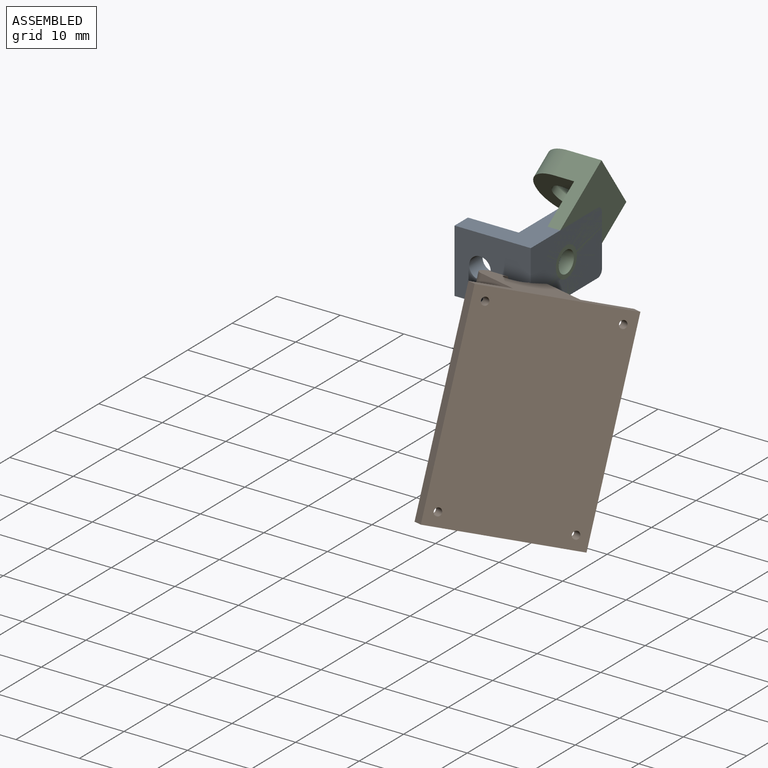
[diagram: assembled view]
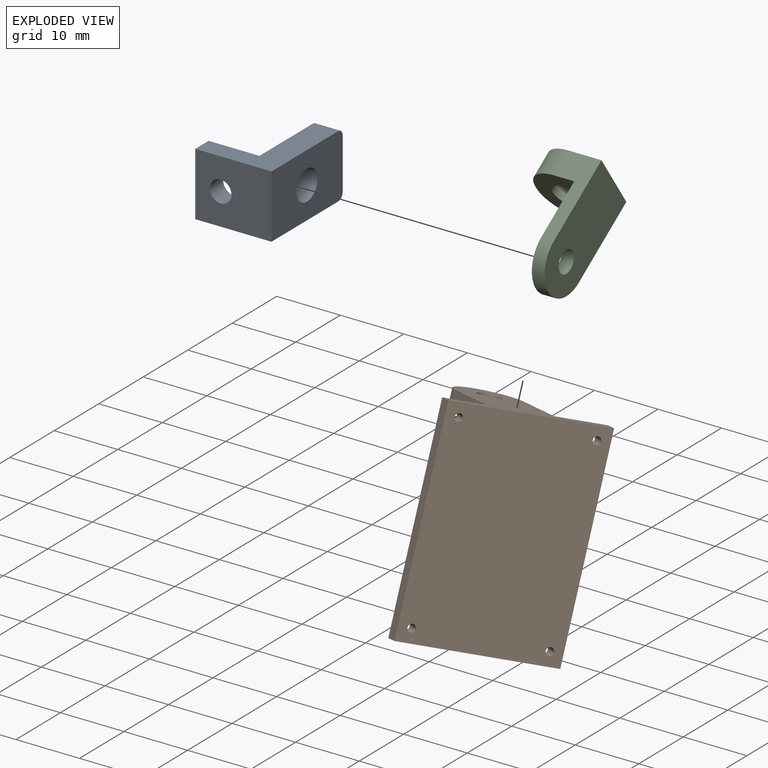
[diagram: exploded view]
GUIDED TOUR — FREECAD ASSEMBLY "CameraMount"

This assembly has 3 components, labeled P0..P2 below (a component is one placed body or linked part; the same part can appear more than once), held together by 2 modeled joints. A joint is a constraint between two components; its type names the relative motion it leaves free:
  REVOLUTE — leaves rotation about the listed axis free (a hinge).
Axis/direction vectors are unit vectors and 'through' points are millimeter coordinates, both in the assembly's world frame.

MATES
  1. REVOLUTE [Revolute] "Joint": P2 <-> P0, axis (-1.000, 0.000, 0.000) through (2.00, 8.00, 5.00) mm
  2. REVOLUTE [Revolute] "Joint001": P2 <-> P1, axis (0.000, 0.378, 0.926) through (0.00, -1.30, 3.40) mm

ASSEMBLY ORDER
  1. P2 — the base component [order verified]
  2. P1 [order verified]
  3. P0 [order verified]
(P0 verified with a relaxed clearance tolerance: the source model stores slight part interference there.)
Order-tag legend:
  [order verified] — this step's position reverses a verified removal order: the component was checked to insert without passing through the ones already placed.

Of the 3 components, 3 carry a construction recipe — the FreeCAD feature program (sketches with constraints, then the solid features that consume them) that regenerates the part from scratch, quoted from this document or from the linked companion document it references; the rest are supplied as boundary geometry only. The tour below walks the components in assembly order: each is shown spotlighted twice — in the assembled view, then in the exploded view, where a leader line traces a displaced component back to its assembled socket (components that stay in place when exploded have no leader line; saturated green if recipe-attached, orange if geometry-only; every other component desaturated gray) — followed by its recipe or geometry summary and the mates that hold it.
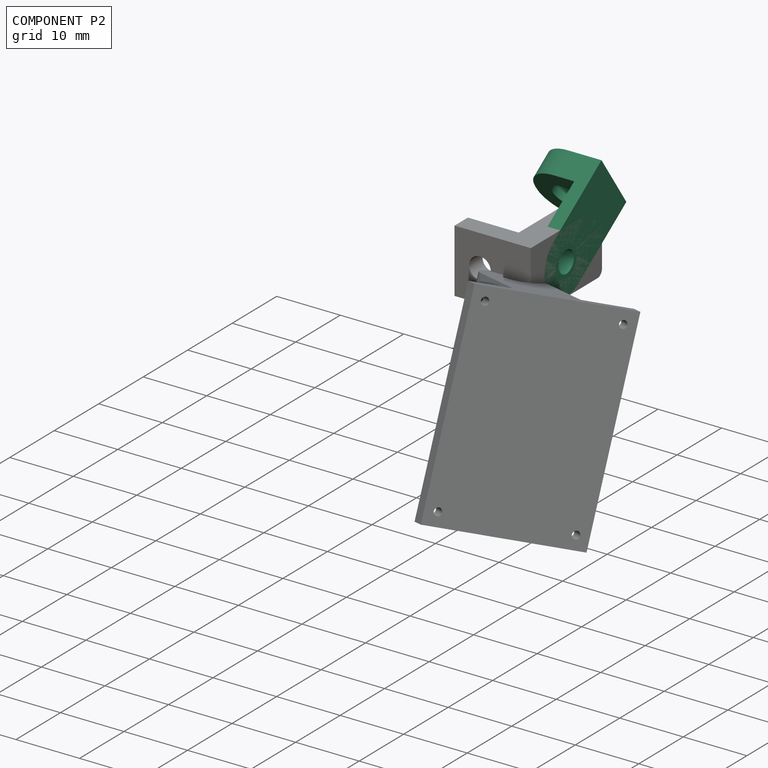
[diagram: component P2 — assembled]
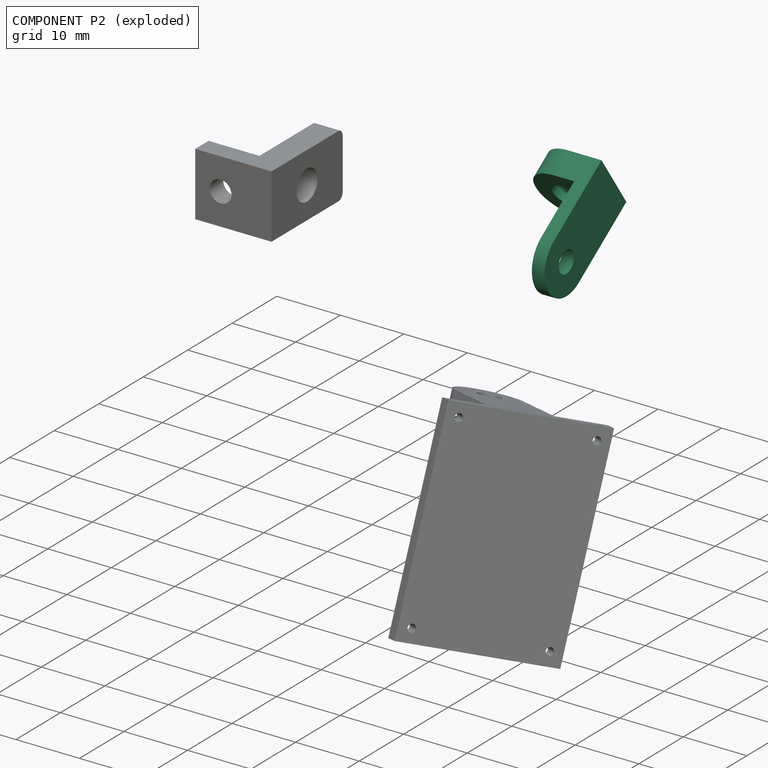
[diagram: component P2 — exploded]
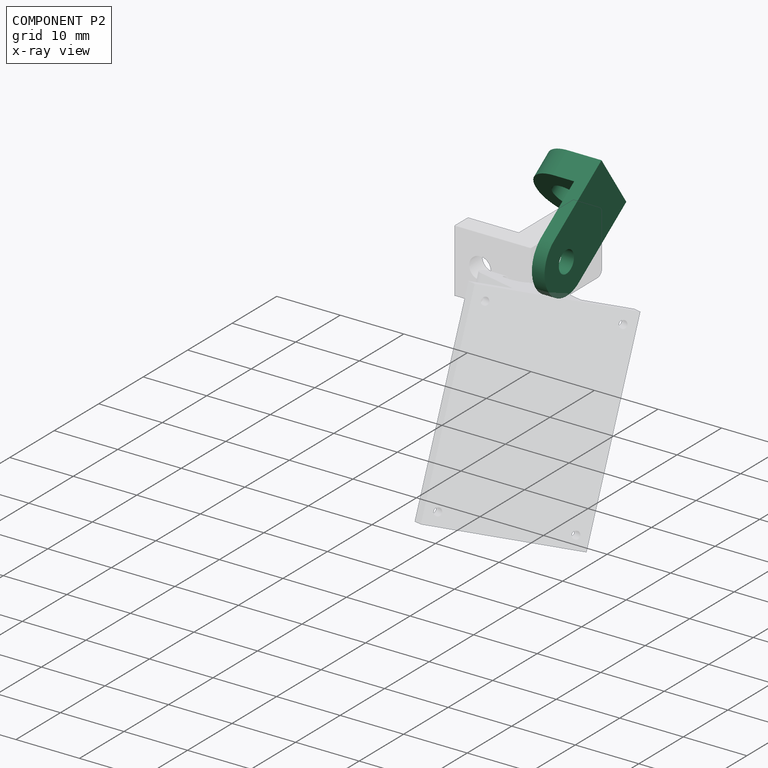
[diagram: component P2 — x-ray view]
COMPONENT P2 — recipe-attached ("Body006", modeled in this document).
Held by: REVOLUTE mate "Joint" to P0; REVOLUTE mate "Joint001" to P1.
Construction recipe (the document's own serialized feature program — sketch geometry with constraints, then the solid features built on it; lengths are millimeters unless a unit is written):

FEATURE [PartDesign::ShapeBinder] ShapeBinder
  Support = -> [Pocket]
  TraceSupport = false
FEATURE [PartDesign::Plane] DatumPlane
  AttachmentSupport = -> [ShapeBinder]
  Length = 60
  MapMode = 5
  Placement = pos=(2,0,0) rot=(0.57735,0.57735,0.57735;2.0944rad)
  ResizeMode = 0
  Width = 60
FEATURE [Sketcher::SketchObject] Sketch004
  ArcFitTolerance = 1e-06
  AttachmentSupport = -> [DatumPlane]
  ExternalGeometry = -> [ShapeBinder]
  FullyConstrained = true
  MakeInternals = false
  MapMode = 5
  Placement = pos=(2,0,0) rot=(0.57735,0.57735,0.57735;2.0944rad)
  sketch-geometry (7):
    g0: ArcOfCircle CenterX=-7 CenterY=-5 CenterZ=0 NormalX=0 NormalY=0 NormalZ=1 AngleXU=0 Radius=4.9 StartAngle=4.71239 EndAngle=7.85398
    g1: Circle CenterX=-7 CenterY=-5 CenterZ=0 NormalX=0 NormalY=0 NormalZ=1 AngleXU=0 Radius=1.7
    g2: GeomPoint X=-7 Y=-0.1 Z=0
    g3: GeomPoint X=-7 Y=-9.9 Z=0
    g4: LineSegment StartX=-7 StartY=-0.1 StartZ=0 EndX=-20 EndY=-0.1 EndZ=0
    g5: LineSegment StartX=-20 StartY=-0.1 StartZ=0 EndX=-20 EndY=-9.9 EndZ=0
    g6: LineSegment StartX=-20 StartY=-9.9 StartZ=0 EndX=-7 EndY=-9.9 EndZ=0
  constraints (15):
    c: Coincident(g0,g-3)
    c: Diameter(g0) = 9.8
    c: Coincident(g1,g0)
    c: Diameter(g1) = 3.4
    c: Vertical(g3,g0)
    c: Vertical(g2,g0)
    c: Coincident(g4,g2)
    c: Horizontal(g4)
    c: Coincident(g5,g4)
    c: Vertical(g5)
    c: Coincident(g6,g5)
    c: Coincident(g6,g3)
    c: Coincident(g0,g4)
    c: Tangent(g0,g6) = -1.5708
    c: DistanceX(g6,g6) = 13
FEATURE [PartDesign::Pad] Pad002
  Direction = (1,0,0)
  Length = 2
  Length2 = 10
  Placement = pos=(2,0,0) rot=(0.57735,0.57735,0.57735;2.0944rad)
  Profile = -> Sketch004
  ReferenceAxis = -> Sketch004 [N_Axis]
  Refine = true
  Suppressed = false
  Type = 0
FEATURE [Sketcher::SketchObject] Sketch005
  ArcFitTolerance = 1e-06
  AttachmentSupport = -> [Pad002]
  ExternalGeometry = -> [Pad002]
  FullyConstrained = true
  MakeInternals = false
  MapMode = 5
  Placement = pos=(2,0,-9.9) rot=(0.707107,0.707107,0;3.14159rad)
  sketch-geometry (4):
    g0: LineSegment StartX=-20 StartY=2 StartZ=0 EndX=-16 EndY=2 EndZ=0
    g1: LineSegment StartX=-16 StartY=2 StartZ=0 EndX=-16 EndY=10 EndZ=0
    g2: LineSegment StartX=-16 StartY=10 StartZ=0 EndX=-20 EndY=10 EndZ=0
    g3: LineSegment StartX=-20 StartY=10 StartZ=0 EndX=-20 EndY=2 EndZ=0
  constraints (11):
    c: Coincident(g0,g1)
    c: Coincident(g1,g2)
    c: Coincident(g2,g3)
    c: Coincident(g3,g0)
    c: Horizontal(g0)
    c: Horizontal(g2)
    c: Vertical(g1)
    c: Vertical(g3)
    c: Distance(g1,g3) = 4
    c: Distance(g0,g2) = 8
    c: Coincident(g0,g-3)
FEATURE [PartDesign::Pad] Pad003
  BaseFeature = -> Pad002
  Direction = (0,0,-1)
  Length = 9.8
  Length2 = 10
  Placement = pos=(2,0,0) rot=(0.57735,0.57735,0.57735;2.0944rad)
  Profile = -> Sketch005
  ReferenceAxis = -> Sketch005 [N_Axis]
  Refine = true
  Reversed = true
  Suppressed = false
  Type = 0
FEATURE [Sketcher::SketchObject] Sketch006
  ArcFitTolerance = 1e-06
  AttachmentSupport = -> [Pad003]
  ExternalGeometry = -> [Pad003]
  FullyConstrained = true
  MakeInternals = false
  MapMode = 5
  Placement = pos=(2,-20,0) rot=(0.57735,0.57735,-0.57735;2.0944rad)
  sketch-geometry (3):
    g0: GeomPoint [constr] X=0.1 Y=5 Z=0
    g1: GeomPoint [constr] X=5 Y=10 Z=0
    g2: Circle CenterX=5 CenterY=5 CenterZ=0 NormalX=0 NormalY=0 NormalZ=1 AngleXU=0 Radius=2.35
  constraints (5):
    c: Symmetric(g-5,g-5,g0)
    c: Symmetric(g-4,g-4,g1)
    c: Diameter(g2) = 4.7
    c: Horizontal(g0,g2)
    c: Vertical(g2,g1)
FEATURE [PartDesign::Pocket] Pocket001
  BaseFeature = -> Pad003
  Direction = (0,1,0)
  Length = 5
  Length2 = 5
  Placement = pos=(2,0,0) rot=(0.57735,0.57735,0.57735;2.0944rad)
  Profile = -> Sketch006
  ReferenceAxis = -> Sketch006 [N_Axis]
  Refine = true
  Suppressed = false
  Type = 0
FEATURE [PartDesign::Fillet] Fillet001
  Base = -> Pocket001 [Edge12,Edge8]
  BaseFeature = -> Pocket001
  Placement = pos=(2,0,0) rot=(0.57735,0.57735,0.57735;2.0944rad)
  Radius = 4.8
  Refine = true
  SupportTransform = false
  Suppressed = false
  UseAllEdges = false
FEATURE [PartDesign::Body] Body002
  AllowCompound = false
  Group = -> [ShapeBinder,DatumPlane,Sketch004,Pad002,Sketch005,Pad003,Sketch006,Pocket001,Fillet001]
  Origin = -> Origin003
  Tip = -> Fillet001
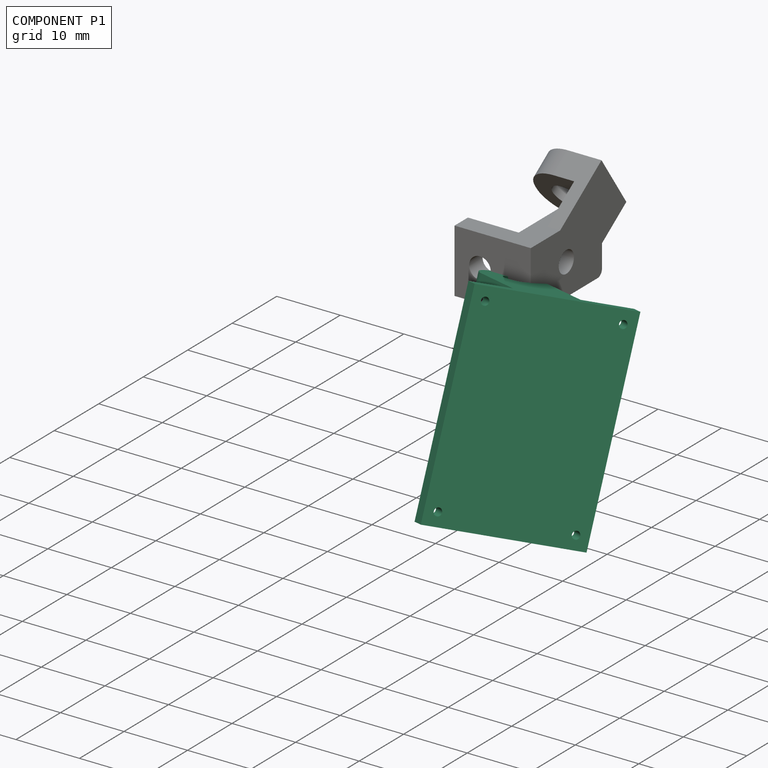
[diagram: component P1 — assembled]
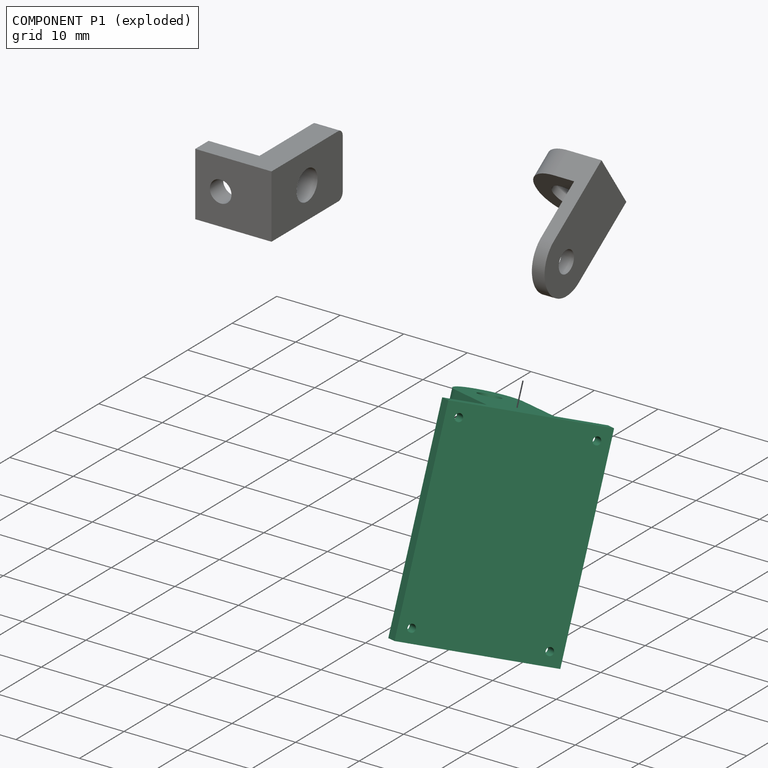
[diagram: component P1 — exploded]
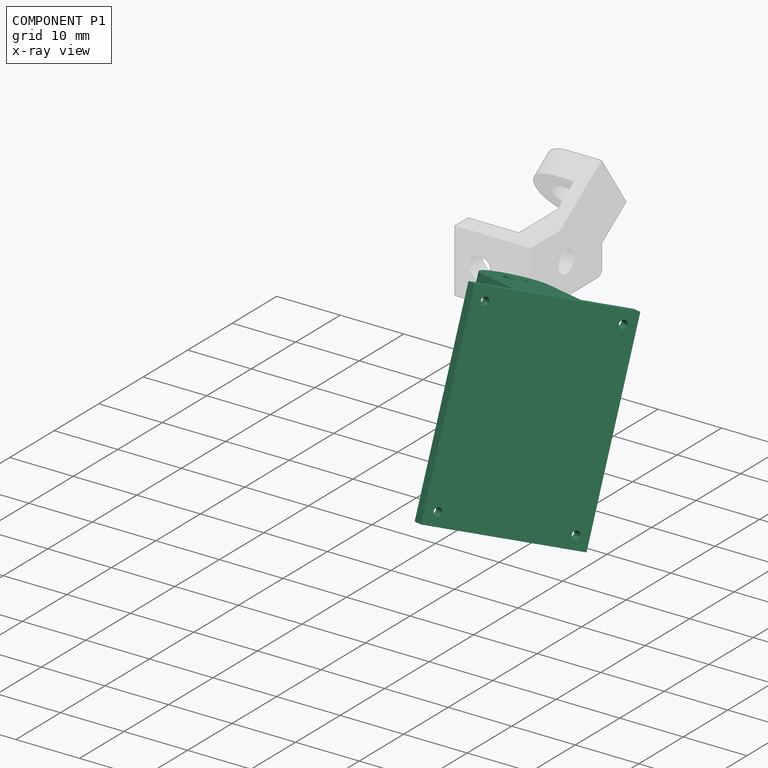
[diagram: component P1 — x-ray view]
COMPONENT P1 — recipe-attached ("Body005", modeled in this document).
Held by: REVOLUTE mate "Joint001" to P2.
Construction recipe (the document's own serialized feature program — sketch geometry with constraints, then the solid features built on it; lengths are millimeters unless a unit is written):

FEATURE [PartDesign::ShapeBinder] ShapeBinder001
  Placement = pos=(2,0,0) rot=(0.57735,0.57735,0.57735;2.0944rad)
  Support = -> [Pocket001]
  TraceSupport = false
FEATURE [Sketcher::SketchObject] Sketch007
  ArcFitTolerance = 1e-06
  AttachmentSupport = -> [ShapeBinder001]
  ExternalGeometry = -> [ShapeBinder001]
  FullyConstrained = true
  MakeInternals = false
  MapMode = 5
  Placement = pos=(2,-20,0) rot=(0.57735,0.57735,-0.57735;2.0944rad)
  sketch-geometry (7):
    g0: ArcOfCircle CenterX=5 CenterY=5 CenterZ=0 NormalX=0 NormalY=0 NormalZ=1 AngleXU=0 Radius=4.9 StartAngle=1.5708 EndAngle=4.71239
    g1: Circle CenterX=5 CenterY=5 CenterZ=0 NormalX=0 NormalY=0 NormalZ=1 AngleXU=0 Radius=1.7
    g2: GeomPoint X=5 Y=9.9 Z=0
    g3: GeomPoint X=5 Y=0.1 Z=0
    g4: LineSegment StartX=5 StartY=9.9 StartZ=0 EndX=15 EndY=9.9 EndZ=0
    g5: LineSegment StartX=15 StartY=9.9 StartZ=0 EndX=15 EndY=0.1 EndZ=0
    g6: LineSegment StartX=15 StartY=0.1 StartZ=0 EndX=5 EndY=0.1 EndZ=0
  constraints (16):
    c: Diameter(g0) = 9.8
    c: Coincident(g0,g-3)
    c: Diameter(g1) = 3.4
    c: Coincident(g1,g0)
    c: Vertical(g3,g0)
    c: Vertical(g0,g2)
    c: Distance(g4) = 10
    c: Coincident(g4,g2)
    c: Horizontal(g4)
    c: Coincident(g5,g4)
    c: Vertical(g5)
    c: Coincident(g6,g5)
    c: Coincident(g6,g3)
    c: Horizontal(g6)
    c: Coincident(g0,g6)
    c: Coincident(g0,g4)
FEATURE [PartDesign::Pad] Pad004
  Direction = (0,-1,0)
  Length = 2
  Length2 = 10
  Placement = pos=(2,0,0) rot=(0.57735,0.57735,0.57735;2.0944rad)
  Profile = -> Sketch007
  ReferenceAxis = -> Sketch007 [N_Axis]
  Refine = true
  Suppressed = false
  Type = 0
FEATURE [Sketcher::SketchObject] Sketch009
  ArcFitTolerance = 1e-06
  AttachmentSupport = -> [Pad004]
  ExternalGeometry = -> [Pad004]
  FullyConstrained = false
  MakeInternals = false
  MapMode = 5
  Placement = pos=(2,0,-15) rot=(0.707107,0.707107,0;3.14159rad)
  sketch-geometry (4):
    g0: LineSegment StartX=-52 StartY=16.3391 StartZ=0 EndX=-52 EndY=-7.66088 EndZ=0
    g1: LineSegment StartX=-52 StartY=-7.66088 StartZ=0 EndX=-20 EndY=-7.66088 EndZ=0
    g2: LineSegment StartX=-20 StartY=-7.66088 StartZ=0 EndX=-20 EndY=16.3391 EndZ=0
    g3: LineSegment StartX=-20 StartY=16.3391 StartZ=0 EndX=-52 EndY=16.3391 EndZ=0
  constraints (11):
    c: Coincident(g0,g1)
    c: Coincident(g1,g2)
    c: Coincident(g2,g3)
    c: Coincident(g3,g0)
    c: Vertical(g0)
    c: Vertical(g2)
    c: Horizontal(g1)
    c: Horizontal(g3)
    c: DistanceX(g3,g3) = 32
    c: DistanceY(g0,g0) = 24
    c: PointOnObject(g-3,g2)
FEATURE [PartDesign::Pad] Pad005
  BaseFeature = -> Pad004
  Direction = (0,0,-1)
  Length = 2
  Length2 = 10
  Placement = pos=(2,0,0) rot=(0.57735,0.57735,0.57735;2.0944rad)
  Profile = -> Sketch009
  ReferenceAxis = -> Sketch009 [N_Axis]
  Refine = true
  Suppressed = false
  Type = 0
FEATURE [Sketcher::SketchObject] Sketch010
  ArcFitTolerance = 1e-06
  AttachmentSupport = -> [Pad005]
  ExternalGeometry = -> [Pad005]
  FullyConstrained = true
  MakeInternals = false
  MapMode = 5
  Placement = pos=(2,-9e-16,-17) rot=(0.707107,0.707107,0;3.14159rad)
  sketch-geometry (8):
    g0: Circle CenterX=-50 CenterY=14.3391 CenterZ=0 NormalX=0 NormalY=0 NormalZ=1 AngleXU=0 Radius=0.5
    g1: Circle CenterX=-22 CenterY=14.3391 CenterZ=0 NormalX=0 NormalY=0 NormalZ=1 AngleXU=0 Radius=0.5
    g2: Circle CenterX=-22 CenterY=-5.66088 CenterZ=0 NormalX=0 NormalY=0 NormalZ=1 AngleXU=0 Radius=0.5
    g3: Circle CenterX=-50 CenterY=-5.66088 CenterZ=0 NormalX=0 NormalY=0 NormalZ=1 AngleXU=0 Radius=0.5
    g4: LineSegment [constr] StartX=-51 StartY=15.3391 StartZ=0 EndX=-51 EndY=-6.66088 EndZ=0
    g5: LineSegment [constr] StartX=-51 StartY=-6.66088 StartZ=0 EndX=-21 EndY=-6.66088 EndZ=0
    g6: LineSegment [constr] StartX=-21 StartY=-6.66088 StartZ=0 EndX=-21 EndY=15.3391 EndZ=0
    g7: LineSegment [constr] StartX=-21 StartY=15.3391 StartZ=0 EndX=-51 EndY=15.3391 EndZ=0
  constraints (24):
    c: Diameter(g0) = 1
    c: Coincident(g4,g5)
    c: Coincident(g5,g6)
    c: Coincident(g6,g7)
    c: Coincident(g7,g4)
    c: Vertical(g4)
    c: Vertical(g6)
    c: Horizontal(g5)
    c: Horizontal(g7)
    c: Distance(g-6,g5) = 1
    c: Distance(g7,g-3) = 1
    c: Distance(g-4,g4) = 1
    c: Distance(g6,g-5) = 1
    c: Distance(g0,g4) = 1
    c: Distance(g0,g7) = 1
    c: Equal(g1,g0)
    c: Equal(g3,g0)
    c: Distance(g3,g4) = 1
    c: Distance(g3,g5) = 1
    c: Equal(g0,g2)
    c: Distance(g2,g5) = 1
    c: Distance(g2,g6) = 1
    c: Distance(g1,g7) = 1
    c: Distance(g1,g6) = 1
FEATURE [PartDesign::Hole] Hole001
  BaseFeature = -> Pad005
  CustomThreadClearance = 0
  Depth = 25
  DepthType = 0
  Diameter = 1.2
  DrillForDepth = false
  DrillPoint = 1
  DrillPointAngle = 118
  HoleCutCountersinkAngle = 90
  HoleCutCustomValues = false
  HoleCutDepth = 0
  HoleCutDiameter = 6.1
  HoleCutType = 0
  ModelThread = false
  Placement = pos=(2,0,0) rot=(0.57735,0.57735,0.57735;2.0944rad)
  Profile = -> Sketch010
  Refine = true
  Suppressed = false
  Tapered = false
  TaperedAngle = 90
  ThreadClass = 0
  ThreadDepth = 25
  ThreadDepthType = 0
  ThreadDirection = 0
  ThreadFit = 0
  ThreadSize = 0
  ThreadType = 1
  Threaded = false
  UseCustomThreadClearance = false
FEATURE [Sketcher::SketchObject] Sketch013
  ArcFitTolerance = 1e-06
  AttachmentSupport = -> [Hole001]
  FullyConstrained = true
  MakeInternals = false
  MapMode = 5
  Placement = pos=(2,-1.9e-15,-17) rot=(0.707107,0.707107,0;3.14159rad)
FEATURE [PartDesign::Body] Body003
  AllowCompound = false
  Group = -> [ShapeBinder001,Sketch007,Pad004,Sketch009,Pad005,Sketch010,Hole001,Sketch013]
  Origin = -> Origin004
  Tip = -> Hole001
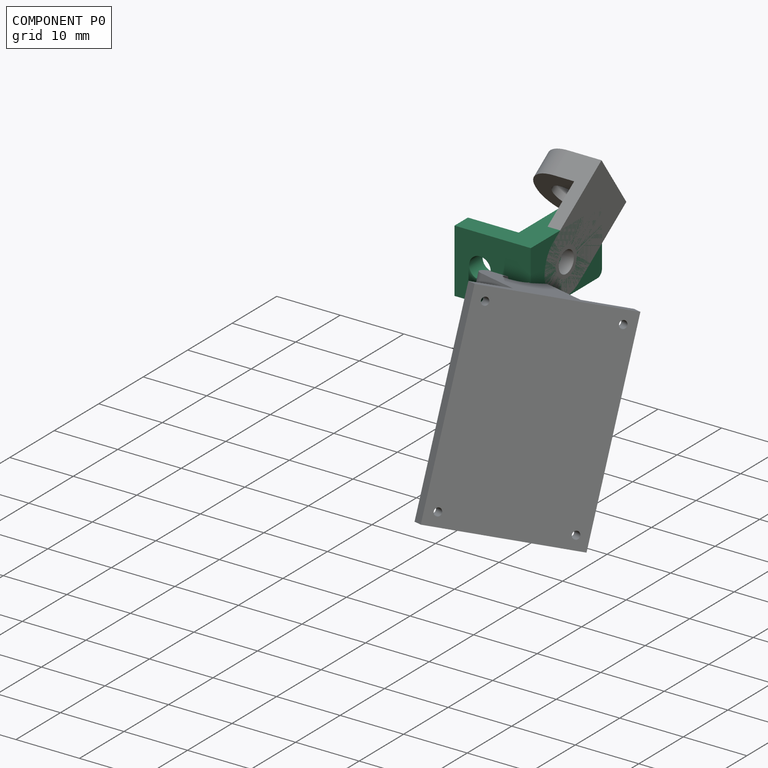
[diagram: component P0 — assembled]
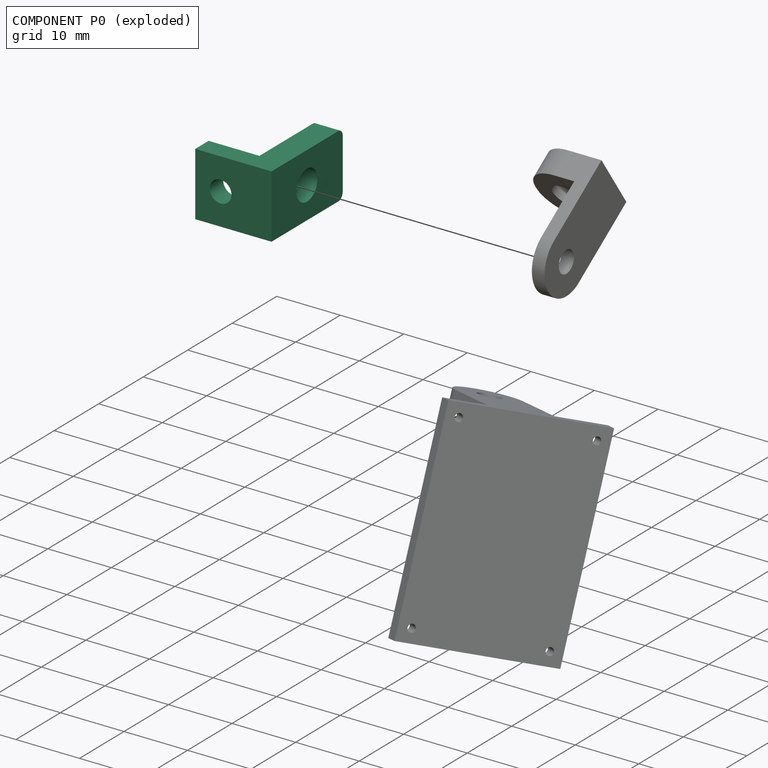
[diagram: component P0 — exploded]
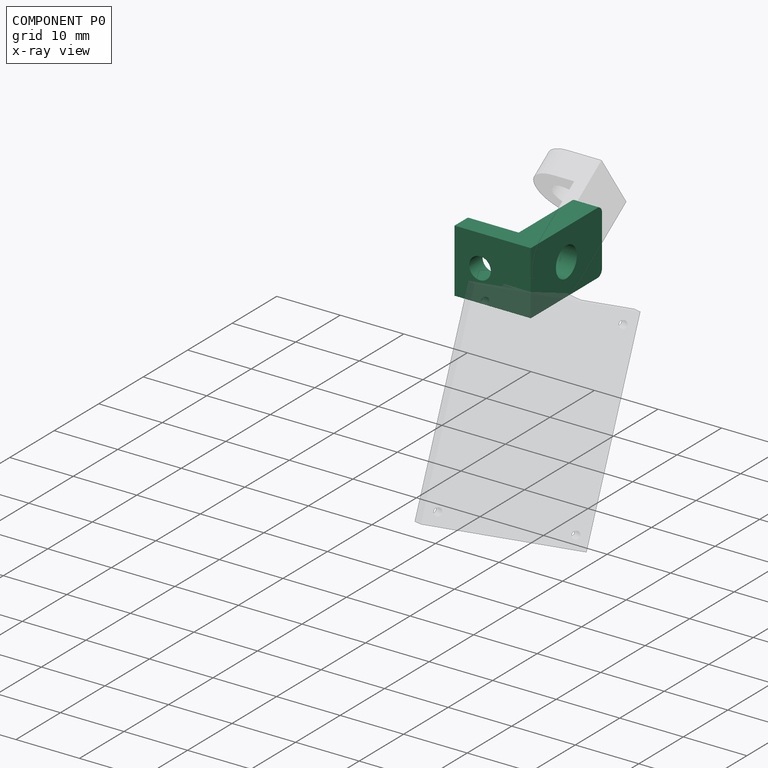
[diagram: component P0 — x-ray view]
COMPONENT P0 — recipe-attached ("Body004", modeled in this document).
Held by: REVOLUTE mate "Joint" to P2.
Construction recipe (the document's own serialized feature program — sketch geometry with constraints, then the solid features built on it; lengths are millimeters unless a unit is written):

FEATURE [Sketcher::SketchObject] Sketch001
  ArcFitTolerance = 1e-06
  AttachmentSupport = -> [XY_Plane002]
  FullyConstrained = true
  MakeInternals = false
  MapMode = 5
  sketch-geometry (6):
    g0: LineSegment StartX=-10 StartY=0 StartZ=0 EndX=-10 EndY=-3 EndZ=0
    g1: LineSegment StartX=-10 StartY=-3 StartZ=0 EndX=-2 EndY=-3 EndZ=0
    g2: LineSegment StartX=-2 StartY=-3 StartZ=0 EndX=-2 EndY=-16 EndZ=0
    g3: LineSegment StartX=-2 StartY=-16 StartZ=0 EndX=2 EndY=-16 EndZ=0
    g4: LineSegment StartX=2 StartY=-16 StartZ=0 EndX=2 EndY=0 EndZ=0
    g5: LineSegment StartX=-10 StartY=0 StartZ=0 EndX=2 EndY=0 EndZ=0
  constraints (17):
    c: Coincident(g0,g1)
    c: Vertical(g0)
    c: Distance(g1,g0) = 3
    c: PointOnObject(g0,g-1)
    c: Coincident(g2,g3)
    c: Coincident(g3,g4)
    c: Vertical(g2)
    c: Vertical(g4)
    c: Distance(g3,g2) = 13
    c: Coincident(g1,g2)
    c: Horizontal(g1,g0)
    c: Coincident(g5,g0)
    c: PointOnObject(g5,g-1)
    c: Coincident(g4,g5)
    c: DistanceX(g3,g3) = 4
    c: Symmetric(g2,g3,g-2)
    c: DistanceX(g1,g1) = 8
FEATURE [PartDesign::Pad] Pad001
  Direction = (0,0,1)
  Length = 10
  Length2 = 10
  Profile = -> Sketch001
  ReferenceAxis = -> Sketch001 [N_Axis]
  Refine = true
  Reversed = true
  Suppressed = false
  Type = 0
FEATURE [Sketcher::SketchObject] Sketch002
  ArcFitTolerance = 1e-06
  AttachmentSupport = -> [Pad001]
  ExternalGeometry = -> [Pad001]
  FullyConstrained = true
  MakeInternals = false
  MapMode = 5
  Placement = pos=(0,-3,0) rot=(1,0,0;1.5708rad)
  sketch-geometry (3):
    g0: Circle CenterX=-6 CenterY=-5 CenterZ=0 NormalX=0 NormalY=0 NormalZ=1 AngleXU=0 Radius=1.5
    g1: GeomPoint [constr] X=-6 Y=0 Z=0
    g2: GeomPoint [constr] X=-10 Y=-5 Z=0
  constraints (5):
    c: Diameter(g0) = 3
    c: Symmetric(g-4,g-4,g1)
    c: Symmetric(g-3,g-3,g2)
    c: Horizontal(g2,g0)
    c: Vertical(g1,g0)
FEATURE [PartDesign::Hole] Hole
  BaseFeature = -> Pad001
  CustomThreadClearance = 0
  Depth = 25
  DepthType = 0
  Diameter = 3.4
  DrillForDepth = false
  DrillPoint = 1
  DrillPointAngle = 118
  HoleCutCountersinkAngle = 90
  HoleCutCustomValues = false
  HoleCutDepth = 0
  HoleCutDiameter = 6.1
  HoleCutType = 0
  ModelThread = false
  Profile = -> Sketch002
  Refine = true
  Suppressed = false
  Tapered = false
  TaperedAngle = 90
  ThreadClass = 0
  ThreadDepth = 25
  ThreadDepthType = 0
  ThreadDirection = 0
  ThreadFit = 0
  ThreadSize = 9
  ThreadType = 1
  Threaded = false
  UseCustomThreadClearance = false
FEATURE [Sketcher::SketchObject] Sketch003
  ArcFitTolerance = 1e-06
  AttachmentSupport = -> [Hole]
  ExternalGeometry = -> [Hole]
  FullyConstrained = true
  MakeInternals = false
  MapMode = 5
  Placement = pos=(2,0,0) rot=(0.57735,0.57735,0.57735;2.0944rad)
  sketch-geometry (3):
    g0: GeomPoint [constr] X=-8 Y=-10 Z=0
    g1: GeomPoint [constr] X=-2 Y=-5 Z=0
    g2: Circle CenterX=-8 CenterY=-5 CenterZ=0 NormalX=0 NormalY=0 NormalZ=1 AngleXU=0 Radius=2.35
  constraints (5):
    c: Symmetric(g-4,g-4,g0)
    c: Symmetric(g-3,g-3,g1)
    c: Horizontal(g2,g1)
    c: Vertical(g2,g0)
    c: Diameter(g2) = 4.7
FEATURE [PartDesign::Pocket] Pocket
  BaseFeature = -> Hole
  Direction = (-1,0,0)
  Length = 5
  Length2 = 5
  Profile = -> Sketch003
  ReferenceAxis = -> Sketch003 [N_Axis]
  Refine = true
  Suppressed = false
  Type = 0
FEATURE [PartDesign::Fillet] Fillet
  Base = -> Pocket [Edge14,Edge17]
  BaseFeature = -> Pocket
  Radius = 1
  Refine = true
  SupportTransform = false
  Suppressed = false
  UseAllEdges = false
FEATURE [PartDesign::Body] Body001  label="Body"
  AllowCompound = false
  Group = -> [Sketch001,Pad001,Sketch002,Hole,Sketch003,Pocket,Fillet]
  Origin = -> Origin002
  Tip = -> Fillet
PROVENANCE & LICENSES
Assembly and component geometry: a FreeCAD (.FCStd) document from a public repository crawl; components, placements and joints were extracted with FreeCAD and each solid tessellated.
Construction recipes: the document's own serialized feature recipes (and, for linked parts, the recipes of companion documents from the same project).
License: as declared in the source repository (recorded in the dataset sidecar).
Joints: native FreeCAD joints and A2plus constraints are mapped to standard mate types.
Verification: 3 of this assembly's 3 components carry a construction recipe (3 from this document itself); the rest are geometry-only. Every component's tessellation passed the extraction mesh gates (mesh-volume checksum against the B-rep where available, bounding-box inflation <= 2%).
Renders: orthographic iso camera (az 35 / el 25); the floor grid conveys scale (grid pitch printed in each image; no ruler). In the exploded view each component is displaced by its stored offset vector: the offsets alone carry the explosion direction (mate normal/axis signs are not orientation cues and do not encode it), and separation distances are assigned per mate-chain, not proportionally to assembly-order depth.
